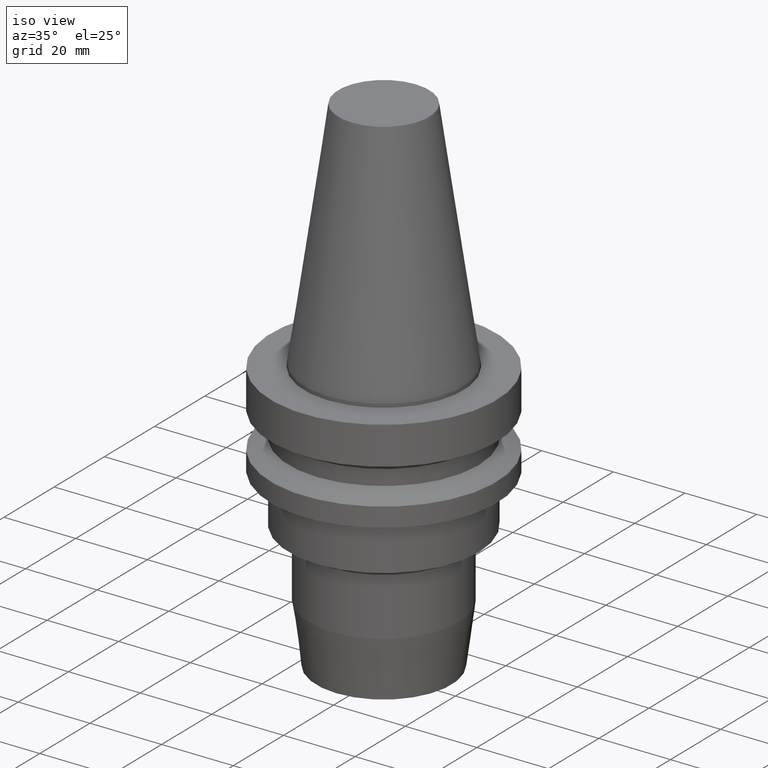
[diagram: clean part render]
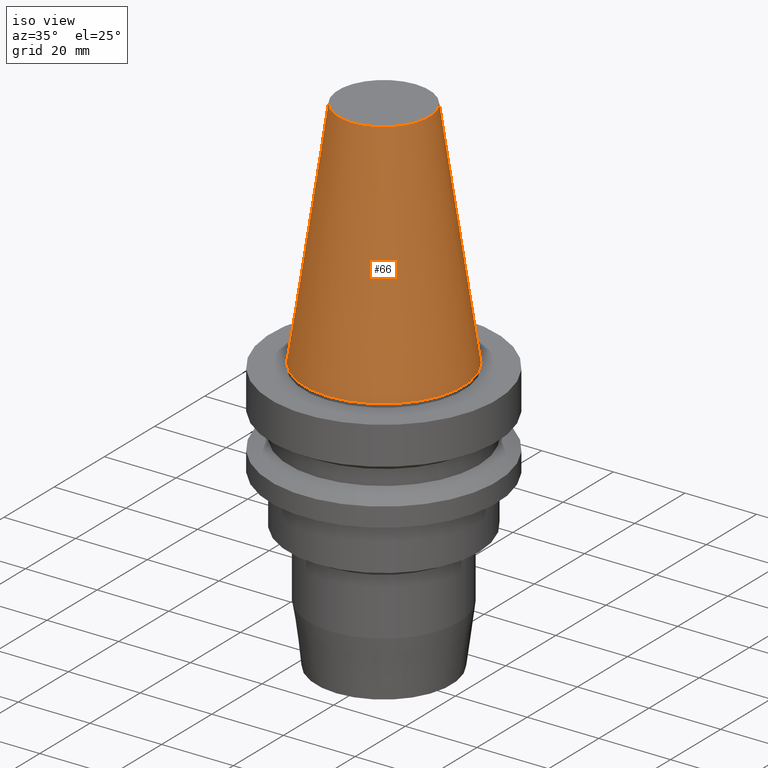
[diagram: same view with one face highlighted and labeled with its STEP entity id]
A machine part, iso view. The second image highlights one B-rep face of the part: STEP entity #66.
In plain terms, the highlighted conical surface has half-angle 8.297 deg.
Its self-contained STEP definition (entity closure, byte-faithful):
#66=ADVANCED_FACE('Unnamed[1]',(#171,#172),#173,.T.);
#104=EDGE_CURVE('Unnamed[1]',#233,#233,#234,.T.);
#131=EDGE_CURVE('Unnamed[1]',#275,#275,#276,.T.);
#171=FACE_BOUND('',#315,.T.);
#172=FACE_BOUND('',#316,.T.);
#173=CONICAL_SURFACE('',#317,17.4562500000001,0.144812498238936);
#233=VERTEX_POINT('',#391);
#234=CIRCLE('',#392,12.6875000000001);
#275=VERTEX_POINT('',#445);
#276=CIRCLE('',#446,22.225);
#315=EDGE_LOOP('',(#479));
#316=EDGE_LOOP('',(#480));
#317=AXIS2_PLACEMENT_3D('',#481,#482,#483);
#391=CARTESIAN_POINT('',(-4.00459503321185E-015,12.6875000000002,65.4000000000001));
#392=AXIS2_PLACEMENT_3D('',#552,#553,#554);
#445=CARTESIAN_POINT('',(1.71319921032766E-029,22.2250000000001,-2.8153873565375E-013));
#446=AXIS2_PLACEMENT_3D('',#597,#598,#599);
#479=ORIENTED_EDGE('',*,*,#131,.F.);
#480=ORIENTED_EDGE('',*,*,#104,.T.);
#481=CARTESIAN_POINT('',(-2.00229751660592E-015,5.45890098710572E-014,32.6999999999999));
#482=DIRECTION('',(6.12323399573677E-017,-6.70009952006028E-016,-1.0));
#483=DIRECTION('',(3.61991244252817E-032,1.0,-6.70009952006028E-016));
#552=CARTESIAN_POINT('',(-4.00459503321185E-015,7.64983353016554E-014,65.4000000000001));
#553=DIRECTION('',(6.12323399573677E-017,-6.70009952006024E-016,-1.0));
#554=DIRECTION('',(3.61991244252803E-032,1.0,-6.70009952006024E-016));
#597=CARTESIAN_POINT('',(1.65331138531142E-029,3.2679684440459E-014,-2.70006239588838E-013));
#598=DIRECTION('',(6.12323399573676E-017,-6.7000995200603E-016,-1.0));
#599=DIRECTION('',(3.61991244252785E-032,1.0,-6.7000995200603E-016));